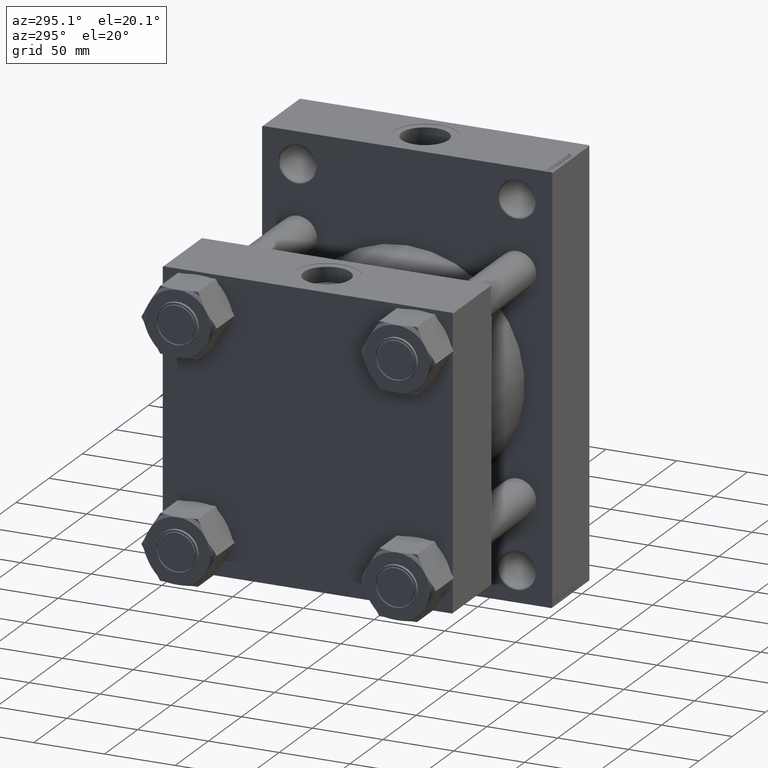
[diagram: clean part render]
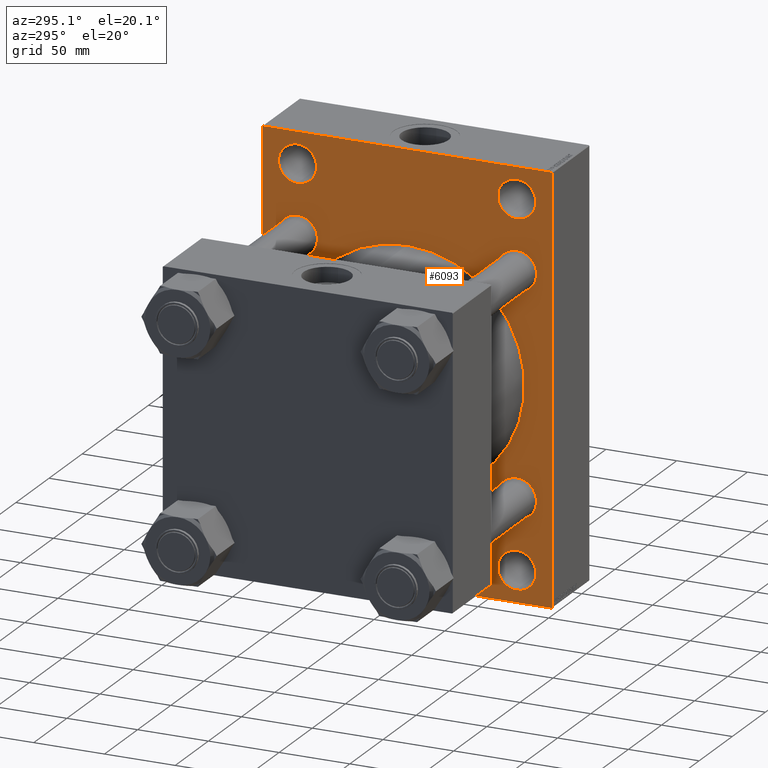
[diagram: same view with one face highlighted and labeled with its STEP entity id]
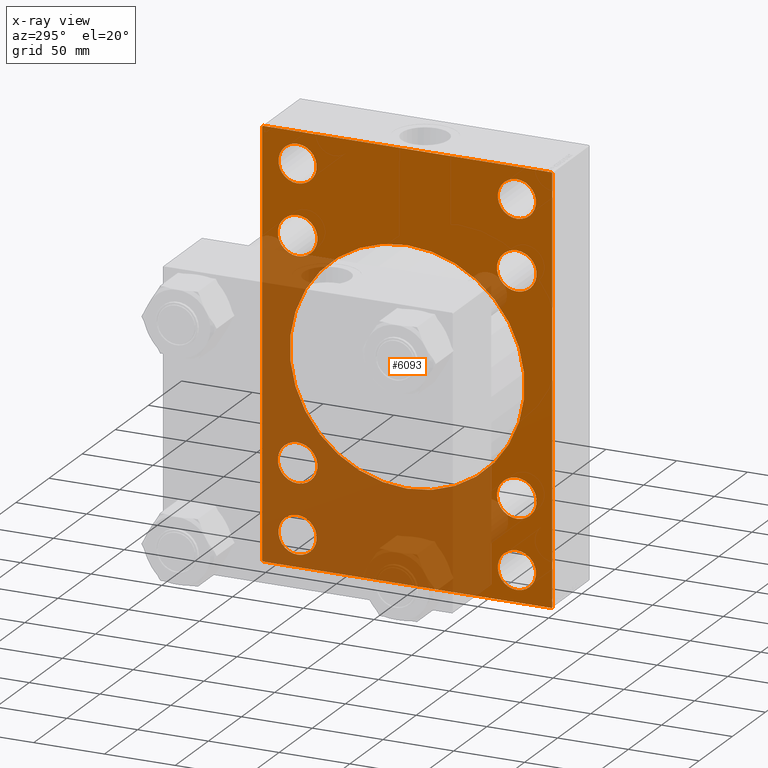
[diagram: x-ray of the same camera — body ghosted, the highlighted face saturated]
A machine part, auxiliary view. The second image highlights one B-rep face of the part: STEP entity #6093.
The next image is the same camera in x-ray: the body ghosted, the highlighted face saturated — about 45% of this face is hidden behind the body in this view.
In plain terms, the highlighted planar face has unit normal (-1, 0, 0).
Its self-contained STEP definition (entity closure, byte-faithful):
#22 = ORIENTED_EDGE ( 'NONE', *, *, #40861, .T. ) ;
#264 = DIRECTION ( 'NONE',  ( 0.000000000000000000, 0.000000000000000000, 1.000000000000000000 ) ) ;
#320 = DIRECTION ( 'NONE',  ( 0.000000000000000000, 0.000000000000000000, 1.000000000000000000 ) ) ;
#415 = EDGE_LOOP ( 'NONE', ( #25811, #22243 ) ) ;
#417 = CARTESIAN_POINT ( 'NONE',  ( 150.0000000000000000, -77.49999999999997158, 113.0000000000000711 ) ) ;
#536 = VERTEX_POINT ( 'NONE', #417 ) ;
#762 = EDGE_CURVE ( 'NONE', #1187, #27186, #22651, .T. ) ;
#870 = CARTESIAN_POINT ( 'NONE',  ( 150.0000000000000000, -77.49999999999998579, -139.9999999999999716 ) ) ;
#1187 = VERTEX_POINT ( 'NONE', #12048 ) ;
#1620 = EDGE_CURVE ( 'NONE', #16885, #25690, #33453, .T. ) ;
#1644 = DIRECTION ( 'NONE',  ( 1.000000000000000000, -0.000000000000000000, 0.000000000000000000 ) ) ;
#1780 = EDGE_CURVE ( 'NONE', #5119, #20322, #36969, .T. ) ;
#1877 = AXIS2_PLACEMENT_3D ( 'NONE', #27919, #5479, #39451 ) ;
#2056 = DIRECTION ( 'NONE',  ( 1.000000000000000000, -0.000000000000000000, 0.000000000000000000 ) ) ;
#2704 = CIRCLE ( 'NONE', #21209, 14.00000000000001243 ) ;
#2928 = EDGE_CURVE ( 'NONE', #20616, #4026, #7321, .T. ) ;
#2948 = CARTESIAN_POINT ( 'NONE',  ( 150.0000000000000000, -77.44999999999996021, -63.45000000000001705 ) ) ;
#3220 = FACE_BOUND ( 'NONE', #34112, .T. ) ;
#3315 = VERTEX_POINT ( 'NONE', #32053 ) ;
#3691 = LINE ( 'NONE', #7783, #5206 ) ;
#3700 = FACE_BOUND ( 'NONE', #33223, .T. ) ;
#3710 = CARTESIAN_POINT ( 'NONE',  ( 150.0000000000000000, 125.2500000000000284, 125.2500000000000284 ) ) ;
#3853 = DIRECTION ( 'NONE',  ( 1.000000000000000000, -0.000000000000000000, 0.000000000000000000 ) ) ;
#3935 = CARTESIAN_POINT ( 'NONE',  ( 150.0000000000000000, 77.50000000000002842, 126.5000000000000000 ) ) ;
#4026 = VERTEX_POINT ( 'NONE', #29985 ) ;
#4030 = ORIENTED_EDGE ( 'NONE', *, *, #11460, .T. ) ;
#4107 = CARTESIAN_POINT ( 'NONE',  ( 150.0000000000000000, -77.49999999999997158, 126.5000000000000284 ) ) ;
#4601 = CARTESIAN_POINT ( 'NONE',  ( 150.0000000000000000, 102.0000000000000568, 148.5000000000000000 ) ) ;
#5119 = VERTEX_POINT ( 'NONE', #19146 ) ;
#5206 = VECTOR ( 'NONE', #11627, 1000.000000000000000 ) ;
#5341 = ORIENTED_EDGE ( 'NONE', *, *, #38803, .T. ) ;
#5479 = DIRECTION ( 'NONE',  ( 1.000000000000000000, -0.000000000000000000, 0.000000000000000000 ) ) ;
#6093 = ADVANCED_FACE ( 'NONE', ( #18652, #22269, #3220, #14777, #10925, #3700, #29749, #47584, #17709, #17940 ), #14302, .T. ) ;
#6124 = EDGE_CURVE ( 'NONE', #44004, #15428, #25131, .T. ) ;
#6132 = CARTESIAN_POINT ( 'NONE',  ( 150.0000000000000000, 77.44999999999998863, -91.45000000000003126 ) ) ;
#6210 = DIRECTION ( 'NONE',  ( 0.000000000000000000, -0.7071067811865279218, 0.7071067811865672237 ) ) ;
#6431 = LINE ( 'NONE', #28166, #31503 ) ;
#7080 = DIRECTION ( 'NONE',  ( 1.000000000000000000, -0.000000000000000000, 0.000000000000000000 ) ) ;
#7284 = VECTOR ( 'NONE', #18648, 1000.000000000000114 ) ;
#7321 = CIRCLE ( 'NONE', #38901, 13.49999999999995737 ) ;
#7404 = CARTESIAN_POINT ( 'NONE',  ( 150.0000000000000000, 77.44999999999998863, 77.45000000000001705 ) ) ;
#7418 = ORIENTED_EDGE ( 'NONE', *, *, #34795, .T. ) ;
#7545 = ORIENTED_EDGE ( 'NONE', *, *, #32967, .T. ) ;
#7616 = CARTESIAN_POINT ( 'NONE',  ( 150.0000000000000000, -77.49999999999998579, -126.5000000000000000 ) ) ;
#7733 = EDGE_CURVE ( 'NONE', #26113, #19910, #2704, .T. ) ;
#7783 = CARTESIAN_POINT ( 'NONE',  ( 150.0000000000000000, -102.5000000000000142, 148.5000000000000000 ) ) ;
#7785 = DIRECTION ( 'NONE',  ( 1.000000000000000000, -0.000000000000000000, 0.000000000000000000 ) ) ;
#7888 = ORIENTED_EDGE ( 'NONE', *, *, #21153, .T. ) ;
#8218 = LINE ( 'NONE', #12534, #36973 ) ;
#8343 = AXIS2_PLACEMENT_3D ( 'NONE', #40813, #7785, #22496 ) ;
#8508 = CARTESIAN_POINT ( 'NONE',  ( 150.0000000000000000, -102.5000000000000142, -147.9999999999998863 ) ) ;
#8818 = EDGE_CURVE ( 'NONE', #4026, #20616, #23565, .T. ) ;
#9046 = EDGE_CURVE ( 'NONE', #31179, #536, #28987, .T. ) ;
#9194 = DIRECTION ( 'NONE',  ( 0.000000000000000000, 0.000000000000000000, -1.000000000000000000 ) ) ;
#9774 = CARTESIAN_POINT ( 'NONE',  ( 150.0000000000000000, -77.44999999999996021, -91.45000000000004547 ) ) ;
#9992 = AXIS2_PLACEMENT_3D ( 'NONE', #28550, #27860, #46407 ) ;
#10020 = ORIENTED_EDGE ( 'NONE', *, *, #2928, .T. ) ;
#10124 = CARTESIAN_POINT ( 'NONE',  ( 150.0000000000000000, 77.44999999999998863, 77.45000000000001705 ) ) ;
#10170 = EDGE_CURVE ( 'NONE', #22192, #10493, #44691, .T. ) ;
#10171 = CARTESIAN_POINT ( 'NONE',  ( 150.0000000000000000, 77.44999999999998863, 91.45000000000003126 ) ) ;
#10205 = ORIENTED_EDGE ( 'NONE', *, *, #31708, .T. ) ;
#10493 = VERTEX_POINT ( 'NONE', #16421 ) ;
#10596 = CIRCLE ( 'NONE', #37559, 13.49999999999995737 ) ;
#10748 = DIRECTION ( 'NONE',  ( 1.000000000000000000, -0.000000000000000000, 0.000000000000000000 ) ) ;
#10910 = EDGE_LOOP ( 'NONE', ( #17177, #27727 ) ) ;
#10925 = FACE_BOUND ( 'NONE', #27639, .T. ) ;
#11213 = DIRECTION ( 'NONE',  ( 0.000000000000000000, 0.000000000000000000, 1.000000000000000000 ) ) ;
#11306 = AXIS2_PLACEMENT_3D ( 'NONE', #11319, #3853, #33281 ) ;
#11319 = CARTESIAN_POINT ( 'NONE',  ( 150.0000000000000000, 77.50000000000002842, 126.5000000000000000 ) ) ;
#11397 = DIRECTION ( 'NONE',  ( 1.000000000000000000, 0.000000000000000000, 0.000000000000000000 ) ) ;
#11460 = EDGE_CURVE ( 'NONE', #15428, #44004, #35228, .T. ) ;
#11627 = DIRECTION ( 'NONE',  ( 0.000000000000000000, 0.000000000000000000, -1.000000000000000000 ) ) ;
#11717 = DIRECTION ( 'NONE',  ( 0.000000000000000000, 0.000000000000000000, 1.000000000000000000 ) ) ;
#11987 = EDGE_LOOP ( 'NONE', ( #22, #13112, #25210, #33049, #31703, #20854, #12268, #7545 ) ) ;
#12013 = EDGE_CURVE ( 'NONE', #25690, #16885, #18285, .T. ) ;
#12048 = CARTESIAN_POINT ( 'NONE',  ( 150.0000000000000000, -77.44999999999996021, 91.45000000000004547 ) ) ;
#12262 = EDGE_CURVE ( 'NONE', #5119, #12387, #3691, .T. ) ;
#12268 = ORIENTED_EDGE ( 'NONE', *, *, #25191, .T. ) ;
#12336 = DIRECTION ( 'NONE',  ( 0.000000000000000000, 0.000000000000000000, 1.000000000000000000 ) ) ;
#12387 = VERTEX_POINT ( 'NONE', #8508 ) ;
#12534 = CARTESIAN_POINT ( 'NONE',  ( 150.0000000000000000, 125.2499999999943441, -125.2500000000082707 ) ) ;
#12634 = DIRECTION ( 'NONE',  ( 0.000000000000000000, -1.000000000000000000, -1.353930517835556727E-16 ) ) ;
#13112 = ORIENTED_EDGE ( 'NONE', *, *, #30146, .T. ) ;
#13450 = EDGE_CURVE ( 'NONE', #536, #31179, #10596, .T. ) ;
#14302 = PLANE ( 'NONE',  #22070 ) ;
#14655 = AXIS2_PLACEMENT_3D ( 'NONE', #7404, #41154, #22846 ) ;
#14687 = CIRCLE ( 'NONE', #20128, 14.00000000000001243 ) ;
#14777 = FACE_BOUND ( 'NONE', #16279, .T. ) ;
#14787 = DIRECTION ( 'NONE',  ( 0.000000000000000000, 0.7071067811865474617, -0.7071067811865474617 ) ) ;
#15099 = AXIS2_PLACEMENT_3D ( 'NONE', #3935, #7080, #320 ) ;
#15428 = VERTEX_POINT ( 'NONE', #17160 ) ;
#16279 = EDGE_LOOP ( 'NONE', ( #37554, #4030 ) ) ;
#16421 = CARTESIAN_POINT ( 'NONE',  ( 150.0000000000000000, 102.5000000000000142, 148.0000000000000568 ) ) ;
#16597 = CARTESIAN_POINT ( 'NONE',  ( 150.0000000000000000, -102.0000000000000568, 148.5000000000000000 ) ) ;
#16684 = DIRECTION ( 'NONE',  ( 1.000000000000000000, -0.000000000000000000, 0.000000000000000000 ) ) ;
#16801 = CARTESIAN_POINT ( 'NONE',  ( 150.0000000000000000, -77.49999999999998579, -113.0000000000000426 ) ) ;
#16885 = VERTEX_POINT ( 'NONE', #870 ) ;
#17031 = CIRCLE ( 'NONE', #23174, 14.00000000000001243 ) ;
#17160 = CARTESIAN_POINT ( 'NONE',  ( 150.0000000000000000, 77.50000000000002842, 113.0000000000000426 ) ) ;
#17177 = ORIENTED_EDGE ( 'NONE', *, *, #12013, .T. ) ;
#17709 = FACE_BOUND ( 'NONE', #27960, .T. ) ;
#17940 = FACE_OUTER_BOUND ( 'NONE', #11987, .T. ) ;
#18116 = DIRECTION ( 'NONE',  ( 1.000000000000000000, -0.000000000000000000, 0.000000000000000000 ) ) ;
#18183 = AXIS2_PLACEMENT_3D ( 'NONE', #19979, #1644, #41432 ) ;
#18285 = CIRCLE ( 'NONE', #24465, 13.49999999999995737 ) ;
#18368 = CARTESIAN_POINT ( 'NONE',  ( 150.0000000000000000, 77.44999999999998863, 63.45000000000000284 ) ) ;
#18648 = DIRECTION ( 'NONE',  ( -0.000000000000000000, 0.7071067811865474617, 0.7071067811865474617 ) ) ;
#18652 = FACE_BOUND ( 'NONE', #415, .T. ) ;
#19146 = CARTESIAN_POINT ( 'NONE',  ( 150.0000000000000000, -102.5000000000000142, 148.0000000000000568 ) ) ;
#19453 = DIRECTION ( 'NONE',  ( 1.000000000000000000, -0.000000000000000000, 0.000000000000000000 ) ) ;
#19910 = VERTEX_POINT ( 'NONE', #9774 ) ;
#19979 = CARTESIAN_POINT ( 'NONE',  ( 150.0000000000000000, 77.50000000000002842, -126.5000000000000000 ) ) ;
#20076 = DIRECTION ( 'NONE',  ( 1.000000000000000000, -0.000000000000000000, 0.000000000000000000 ) ) ;
#20128 = AXIS2_PLACEMENT_3D ( 'NONE', #46336, #16684, #27783 ) ;
#20147 = CARTESIAN_POINT ( 'NONE',  ( 150.0000000000000000, -77.49999999999998579, -126.5000000000000000 ) ) ;
#20322 = VERTEX_POINT ( 'NONE', #16597 ) ;
#20558 = CARTESIAN_POINT ( 'NONE',  ( 150.0000000000000000, 77.44999999999998863, -77.45000000000001705 ) ) ;
#20616 = VERTEX_POINT ( 'NONE', #38948 ) ;
#20787 = DIRECTION ( 'NONE',  ( 0.000000000000000000, 0.000000000000000000, 1.000000000000000000 ) ) ;
#20854 = ORIENTED_EDGE ( 'NONE', *, *, #10170, .T. ) ;
#21009 = VERTEX_POINT ( 'NONE', #10171 ) ;
#21153 = EDGE_CURVE ( 'NONE', #21009, #22018, #23654, .T. ) ;
#21209 = AXIS2_PLACEMENT_3D ( 'NONE', #40001, #47709, #25773 ) ;
#21661 = DIRECTION ( 'NONE',  ( 1.000000000000000000, -0.000000000000000000, 0.000000000000000000 ) ) ;
#21700 = CARTESIAN_POINT ( 'NONE',  ( 150.0000000000000000, 102.5000000000000142, 148.5000000000000000 ) ) ;
#21713 = CARTESIAN_POINT ( 'NONE',  ( 150.0000000000000000, -2.602085213965210642E-15, 83.00000000000000000 ) ) ;
#22018 = VERTEX_POINT ( 'NONE', #18368 ) ;
#22070 = AXIS2_PLACEMENT_3D ( 'NONE', #33124, #47111, #43966 ) ;
#22192 = VERTEX_POINT ( 'NONE', #4601 ) ;
#22213 = CIRCLE ( 'NONE', #8343, 14.00000000000001243 ) ;
#22243 = ORIENTED_EDGE ( 'NONE', *, *, #13450, .T. ) ;
#22269 = FACE_BOUND ( 'NONE', #10910, .T. ) ;
#22328 = DIRECTION ( 'NONE',  ( 1.000000000000000000, -0.000000000000000000, 0.000000000000000000 ) ) ;
#22496 = DIRECTION ( 'NONE',  ( 0.000000000000000000, 0.000000000000000000, 1.000000000000000000 ) ) ;
#22651 = CIRCLE ( 'NONE', #1877, 14.00000000000001243 ) ;
#22766 = CARTESIAN_POINT ( 'NONE',  ( 150.0000000000000000, 77.50000000000002842, 139.9999999999999716 ) ) ;
#22846 = DIRECTION ( 'NONE',  ( 0.000000000000000000, 0.000000000000000000, 1.000000000000000000 ) ) ;
#23174 = AXIS2_PLACEMENT_3D ( 'NONE', #41391, #19453, #11717 ) ;
#23341 = EDGE_CURVE ( 'NONE', #22192, #20322, #25321, .T. ) ;
#23565 = CIRCLE ( 'NONE', #18183, 13.49999999999995737 ) ;
#23654 = CIRCLE ( 'NONE', #39789, 14.00000000000001243 ) ;
#23690 = CARTESIAN_POINT ( 'NONE',  ( 150.0000000000000000, 102.0000000000000142, -148.5000000000000000 ) ) ;
#23960 = ORIENTED_EDGE ( 'NONE', *, *, #762, .T. ) ;
#24465 = AXIS2_PLACEMENT_3D ( 'NONE', #20147, #2056, #38696 ) ;
#25032 = ORIENTED_EDGE ( 'NONE', *, *, #34084, .T. ) ;
#25079 = DIRECTION ( 'NONE',  ( 0.000000000000000000, -1.000000000000000000, 0.000000000000000000 ) ) ;
#25131 = CIRCLE ( 'NONE', #15099, 13.49999999999995737 ) ;
#25191 = EDGE_CURVE ( 'NONE', #10493, #28606, #34752, .T. ) ;
#25210 = ORIENTED_EDGE ( 'NONE', *, *, #12262, .F. ) ;
#25321 = LINE ( 'NONE', #21700, #25901 ) ;
#25349 = VERTEX_POINT ( 'NONE', #37346 ) ;
#25473 = CARTESIAN_POINT ( 'NONE',  ( 150.0000000000000000, -77.49999999999997158, 126.5000000000000284 ) ) ;
#25690 = VERTEX_POINT ( 'NONE', #16801 ) ;
#25773 = DIRECTION ( 'NONE',  ( 0.000000000000000000, 0.000000000000000000, 1.000000000000000000 ) ) ;
#25811 = ORIENTED_EDGE ( 'NONE', *, *, #9046, .T. ) ;
#25901 = VECTOR ( 'NONE', #25079, 1000.000000000000000 ) ;
#26113 = VERTEX_POINT ( 'NONE', #2948 ) ;
#26164 = ORIENTED_EDGE ( 'NONE', *, *, #7733, .T. ) ;
#26907 = AXIS2_PLACEMENT_3D ( 'NONE', #20558, #21661, #20787 ) ;
#27186 = VERTEX_POINT ( 'NONE', #44165 ) ;
#27310 = CARTESIAN_POINT ( 'NONE',  ( 150.0000000000000000, 77.50000000000002842, -126.5000000000000000 ) ) ;
#27639 = EDGE_LOOP ( 'NONE', ( #23960, #5341 ) ) ;
#27727 = ORIENTED_EDGE ( 'NONE', *, *, #1620, .T. ) ;
#27783 = DIRECTION ( 'NONE',  ( 0.000000000000000000, 0.000000000000000000, 1.000000000000000000 ) ) ;
#27860 = DIRECTION ( 'NONE',  ( 1.000000000000000000, 0.000000000000000000, 0.000000000000000000 ) ) ;
#27919 = CARTESIAN_POINT ( 'NONE',  ( 150.0000000000000000, -77.44999999999996021, 77.45000000000003126 ) ) ;
#27960 = EDGE_LOOP ( 'NONE', ( #10205, #36716 ) ) ;
#28166 = CARTESIAN_POINT ( 'NONE',  ( 150.0000000000000000, -125.2500000000028280, -125.2499999999958646 ) ) ;
#28550 = CARTESIAN_POINT ( 'NONE',  ( 150.0000000000000000, -2.602085213965210642E-15, 0.000000000000000000 ) ) ;
#28606 = VERTEX_POINT ( 'NONE', #36734 ) ;
#28645 = VECTOR ( 'NONE', #12634, 1000.000000000000000 ) ;
#28671 = EDGE_CURVE ( 'NONE', #19910, #26113, #22213, .T. ) ;
#28932 = DIRECTION ( 'NONE',  ( 1.000000000000000000, -0.000000000000000000, 0.000000000000000000 ) ) ;
#28987 = CIRCLE ( 'NONE', #44354, 13.49999999999995737 ) ;
#29030 = DIRECTION ( 'NONE',  ( 0.000000000000000000, 0.000000000000000000, -1.000000000000000000 ) ) ;
#29306 = CIRCLE ( 'NONE', #14655, 14.00000000000001243 ) ;
#29749 = FACE_BOUND ( 'NONE', #40989, .T. ) ;
#29985 = CARTESIAN_POINT ( 'NONE',  ( 150.0000000000000000, 77.50000000000002842, -139.9999999999999716 ) ) ;
#30049 = DIRECTION ( 'NONE',  ( 0.000000000000000000, 0.000000000000000000, 1.000000000000000000 ) ) ;
#30146 = EDGE_CURVE ( 'NONE', #25349, #12387, #6431, .T. ) ;
#30402 = DIRECTION ( 'NONE',  ( -0.000000000000000000, -0.7071067811865868746, -0.7071067811865081598 ) ) ;
#30980 = CARTESIAN_POINT ( 'NONE',  ( 150.0000000000000000, 77.44999999999998863, -63.45000000000000284 ) ) ;
#31141 = EDGE_CURVE ( 'NONE', #31696, #44076, #46923, .T. ) ;
#31179 = VERTEX_POINT ( 'NONE', #41167 ) ;
#31503 = VECTOR ( 'NONE', #6210, 1000.000000000000000 ) ;
#31696 = VERTEX_POINT ( 'NONE', #6132 ) ;
#31703 = ORIENTED_EDGE ( 'NONE', *, *, #23341, .F. ) ;
#31708 = EDGE_CURVE ( 'NONE', #41163, #3315, #45413, .T. ) ;
#32053 = CARTESIAN_POINT ( 'NONE',  ( 150.0000000000000000, 7.562483218957820855E-15, -83.00000000000000000 ) ) ;
#32543 = DIRECTION ( 'NONE',  ( 0.000000000000000000, 0.000000000000000000, 1.000000000000000000 ) ) ;
#32875 = VECTOR ( 'NONE', #14787, 1000.000000000000114 ) ;
#32967 = EDGE_CURVE ( 'NONE', #28606, #36310, #8218, .T. ) ;
#33049 = ORIENTED_EDGE ( 'NONE', *, *, #1780, .T. ) ;
#33124 = CARTESIAN_POINT ( 'NONE',  ( 150.0000000000000000, 0.000000000000000000, 0.000000000000000000 ) ) ;
#33223 = EDGE_LOOP ( 'NONE', ( #7888, #25032 ) ) ;
#33281 = DIRECTION ( 'NONE',  ( 0.000000000000000000, 0.000000000000000000, 1.000000000000000000 ) ) ;
#33453 = CIRCLE ( 'NONE', #42727, 13.49999999999995737 ) ;
#34084 = EDGE_CURVE ( 'NONE', #22018, #21009, #29306, .T. ) ;
#34112 = EDGE_LOOP ( 'NONE', ( #10020, #37022 ) ) ;
#34752 = LINE ( 'NONE', #38114, #37498 ) ;
#34795 = EDGE_CURVE ( 'NONE', #44076, #31696, #14687, .T. ) ;
#35073 = CARTESIAN_POINT ( 'NONE',  ( 150.0000000000000000, 102.5000000000000142, -148.5000000000000000 ) ) ;
#35228 = CIRCLE ( 'NONE', #11306, 13.49999999999995737 ) ;
#35313 = LINE ( 'NONE', #35073, #28645 ) ;
#36242 = AXIS2_PLACEMENT_3D ( 'NONE', #44435, #11397, #29030 ) ;
#36310 = VERTEX_POINT ( 'NONE', #23690 ) ;
#36716 = ORIENTED_EDGE ( 'NONE', *, *, #37889, .T. ) ;
#36734 = CARTESIAN_POINT ( 'NONE',  ( 150.0000000000000000, 102.5000000000000142, -148.0000000000000568 ) ) ;
#36969 = LINE ( 'NONE', #43963, #7284 ) ;
#36973 = VECTOR ( 'NONE', #30402, 1000.000000000000000 ) ;
#37022 = ORIENTED_EDGE ( 'NONE', *, *, #8818, .T. ) ;
#37346 = CARTESIAN_POINT ( 'NONE',  ( 150.0000000000000000, -102.0000000000000142, -148.5000000000000284 ) ) ;
#37498 = VECTOR ( 'NONE', #9194, 1000.000000000000000 ) ;
#37554 = ORIENTED_EDGE ( 'NONE', *, *, #6124, .T. ) ;
#37559 = AXIS2_PLACEMENT_3D ( 'NONE', #4107, #18116, #264 ) ;
#37889 = EDGE_CURVE ( 'NONE', #3315, #41163, #45472, .T. ) ;
#38114 = CARTESIAN_POINT ( 'NONE',  ( 150.0000000000000000, 102.5000000000000142, 148.5000000000000000 ) ) ;
#38696 = DIRECTION ( 'NONE',  ( 0.000000000000000000, 0.000000000000000000, 1.000000000000000000 ) ) ;
#38803 = EDGE_CURVE ( 'NONE', #27186, #1187, #17031, .T. ) ;
#38901 = AXIS2_PLACEMENT_3D ( 'NONE', #27310, #20076, #12336 ) ;
#38948 = CARTESIAN_POINT ( 'NONE',  ( 150.0000000000000000, 77.50000000000002842, -113.0000000000000426 ) ) ;
#39451 = DIRECTION ( 'NONE',  ( 0.000000000000000000, 0.000000000000000000, 1.000000000000000000 ) ) ;
#39789 = AXIS2_PLACEMENT_3D ( 'NONE', #10124, #28932, #32543 ) ;
#40001 = CARTESIAN_POINT ( 'NONE',  ( 150.0000000000000000, -77.44999999999996021, -77.45000000000003126 ) ) ;
#40813 = CARTESIAN_POINT ( 'NONE',  ( 150.0000000000000000, -77.44999999999996021, -77.45000000000003126 ) ) ;
#40861 = EDGE_CURVE ( 'NONE', #36310, #25349, #35313, .T. ) ;
#40989 = EDGE_LOOP ( 'NONE', ( #7418, #45942 ) ) ;
#41154 = DIRECTION ( 'NONE',  ( 1.000000000000000000, -0.000000000000000000, 0.000000000000000000 ) ) ;
#41163 = VERTEX_POINT ( 'NONE', #21713 ) ;
#41167 = CARTESIAN_POINT ( 'NONE',  ( 150.0000000000000000, -77.49999999999997158, 139.9999999999999716 ) ) ;
#41391 = CARTESIAN_POINT ( 'NONE',  ( 150.0000000000000000, -77.44999999999996021, 77.45000000000003126 ) ) ;
#41432 = DIRECTION ( 'NONE',  ( 0.000000000000000000, 0.000000000000000000, 1.000000000000000000 ) ) ;
#42727 = AXIS2_PLACEMENT_3D ( 'NONE', #7616, #10748, #11213 ) ;
#43963 = CARTESIAN_POINT ( 'NONE',  ( 150.0000000000000000, -125.2500000000000284, 125.2500000000000284 ) ) ;
#43966 = DIRECTION ( 'NONE',  ( -0.000000000000000000, 0.000000000000000000, 1.000000000000000000 ) ) ;
#44004 = VERTEX_POINT ( 'NONE', #22766 ) ;
#44076 = VERTEX_POINT ( 'NONE', #30980 ) ;
#44165 = CARTESIAN_POINT ( 'NONE',  ( 150.0000000000000000, -77.44999999999996021, 63.45000000000001705 ) ) ;
#44354 = AXIS2_PLACEMENT_3D ( 'NONE', #25473, #22328, #30049 ) ;
#44435 = CARTESIAN_POINT ( 'NONE',  ( 150.0000000000000000, -2.602085213965210642E-15, 0.000000000000000000 ) ) ;
#44691 = LINE ( 'NONE', #3710, #32875 ) ;
#45413 = CIRCLE ( 'NONE', #9992, 83.00000000000000000 ) ;
#45445 = EDGE_LOOP ( 'NONE', ( #26164, #46637 ) ) ;
#45472 = CIRCLE ( 'NONE', #36242, 83.00000000000000000 ) ;
#45942 = ORIENTED_EDGE ( 'NONE', *, *, #31141, .T. ) ;
#46336 = CARTESIAN_POINT ( 'NONE',  ( 150.0000000000000000, 77.44999999999998863, -77.45000000000001705 ) ) ;
#46407 = DIRECTION ( 'NONE',  ( 0.000000000000000000, 0.000000000000000000, -1.000000000000000000 ) ) ;
#46637 = ORIENTED_EDGE ( 'NONE', *, *, #28671, .T. ) ;
#46923 = CIRCLE ( 'NONE', #26907, 14.00000000000001243 ) ;
#47111 = DIRECTION ( 'NONE',  ( -1.000000000000000000, 0.000000000000000000, -0.000000000000000000 ) ) ;
#47584 = FACE_BOUND ( 'NONE', #45445, .T. ) ;
#47709 = DIRECTION ( 'NONE',  ( 1.000000000000000000, -0.000000000000000000, 0.000000000000000000 ) ) ;